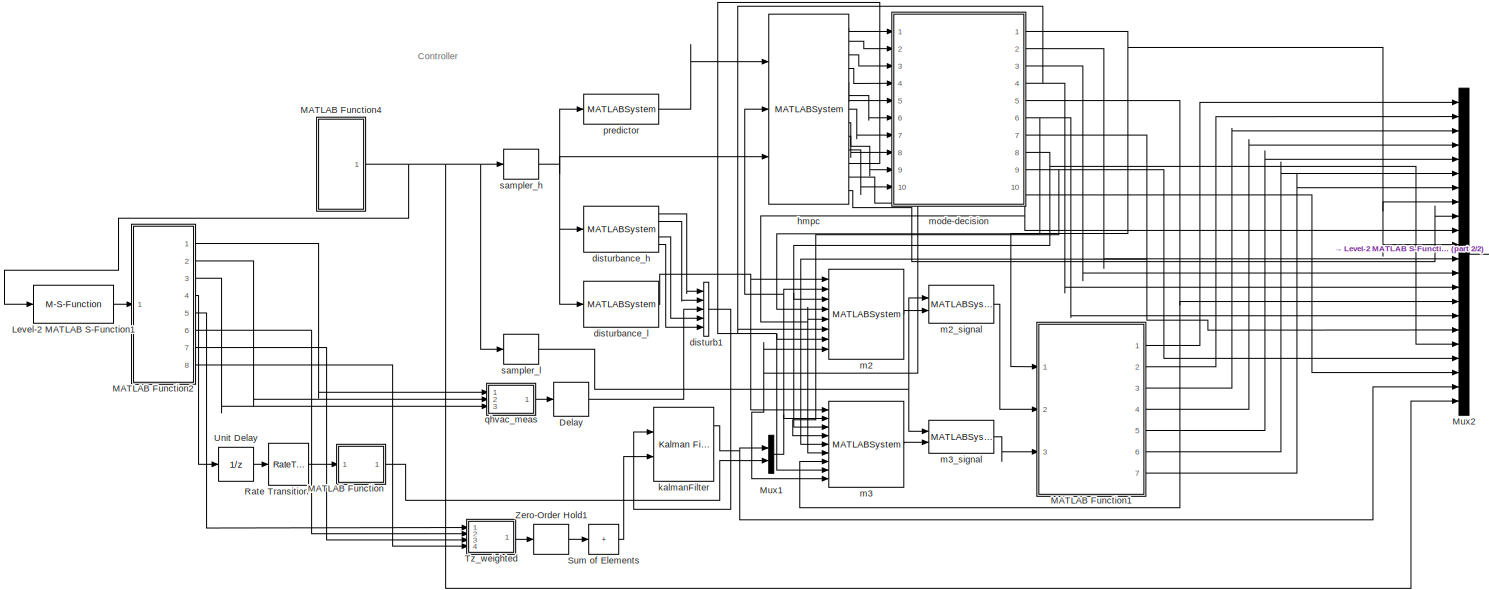
[diagram: root canvas - part 1/2, most of the canvas]
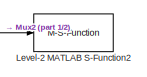
[diagram: root canvas - part 2/2, middle right region]
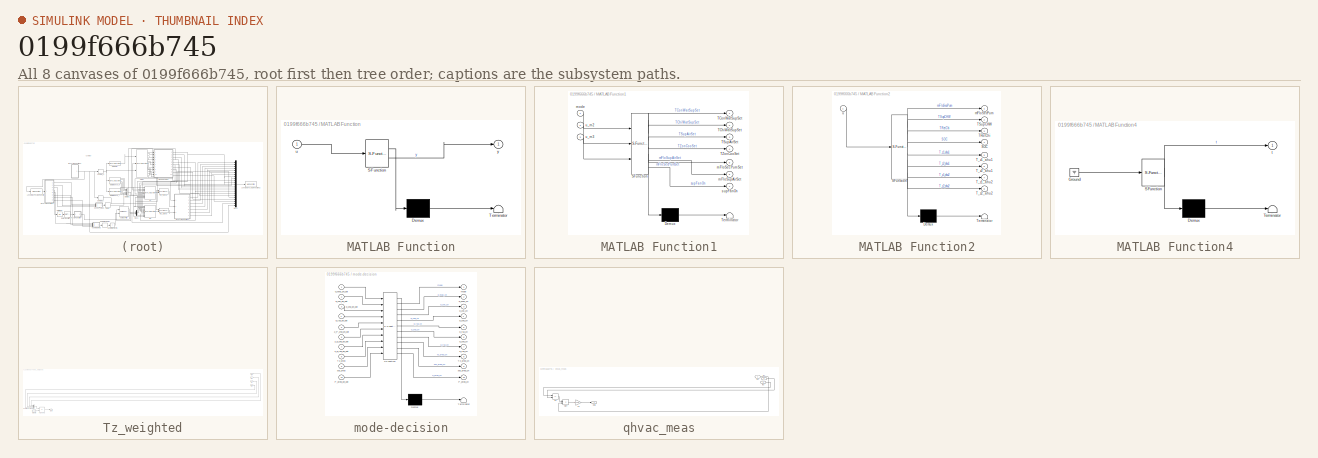
[diagram: thumbnail index - all 8 canvases of the model, root first then tree order]
MODEL slx_0199f666b745
KIND model
CONFIG AbsTol = auto
CONFIG EnableMultiTasking = off
CONFIG FixedStep = 60*15
CONFIG MaxStep = auto
CONFIG MinStep = auto
CONFIG RelTol = 1e-3
CONFIG SampleTimeConstraint = Unconstrained
CONFIG Solver = FixedStepAuto
CONFIG SolverName = FixedStepAuto
CONFIG StartTime = 20478600
CONFIG StopTime = 20479500+60*15
BLOCK [Delay] Delay
  DelayLength = 0
  InputPortMap = u0
  Ports = [1, 1]
  SampleTime = 3600
BLOCK [M-S-Function] Level-2 MATLAB S-Function1
  FunctionName = DBread_Meas_MPC
  Ports = [1, 1]
BLOCK [M-S-Function] Level-2 MATLAB S-Function2
  FunctionName = DBwrite_GEB
  Ports = [1, 1]
BLOCK [SubSystem] MATLAB Function
  ErrorFcn = Stateflow.Translate.translate
  PermitHierarchicalResolution = ExplicitOnly
  Ports = [1, 1]
  RequestExecContextInheritance = off
  SFBlockType = MATLAB Function
  TreatAsAtomicUnit = on
BLOCK [Demux] MATLAB Function/ Demux 
  Outputs = 1
  Ports = [1, 1]
BLOCK [S-Function] MATLAB Function/ SFunction 
  EnableBusSupport = on
  FunctionName = sf_sfun
  PortCounts = [1 2]
  Ports = [1, 2]
  SFcnIsStateOwnerBlock = off
  SFunctionDeploymentMode = off
  Tag = Stateflow S-Function 6
BLOCK [Terminator] MATLAB Function/ Terminator 
BLOCK [Inport] MATLAB Function/u
BLOCK [Outport] MATLAB Function/y
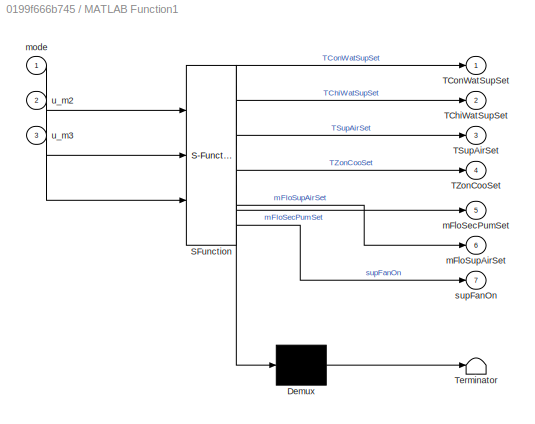
BLOCK [SubSystem] MATLAB Function1
  ErrorFcn = Stateflow.Translate.translate
  PermitHierarchicalResolution = ExplicitOnly
  Ports = [3, 7]
  RequestExecContextInheritance = off
  SFBlockType = MATLAB Function
  TreatAsAtomicUnit = on
BLOCK [Demux] MATLAB Function1/ Demux 
  Outputs = 1
  Ports = [1, 1]
BLOCK [S-Function] MATLAB Function1/ SFunction 
  EnableBusSupport = on
  FunctionName = sf_sfun
  PortCounts = [3 8]
  Ports = [3, 8]
  SFcnIsStateOwnerBlock = off
  SFunctionDeploymentMode = off
  Tag = Stateflow S-Function 1
BLOCK [Terminator] MATLAB Function1/ Terminator 
BLOCK [Outport] MATLAB Function1/TChiWatSupSet
  Port = 2
BLOCK [Outport] MATLAB Function1/TConWatSupSet
BLOCK [Outport] MATLAB Function1/TSupAirSet
  Port = 3
BLOCK [Outport] MATLAB Function1/TZonCooSet
  Port = 4
BLOCK [Outport] MATLAB Function1/mFloSecPumSet
  Port = 5
BLOCK [Outport] MATLAB Function1/mFloSupAirSet
  Port = 6
BLOCK [Inport] MATLAB Function1/mode
BLOCK [Outport] MATLAB Function1/supFanOn
  Port = 7
BLOCK [Inport] MATLAB Function1/u_m2
  Port = 2
BLOCK [Inport] MATLAB Function1/u_m3
  Port = 3
BLOCK [SubSystem] MATLAB Function2
  ErrorFcn = Stateflow.Translate.translate
  PermitHierarchicalResolution = ExplicitOnly
  Ports = [1, 8]
  RequestExecContextInheritance = off
  SFBlockType = MATLAB Function
  TreatAsAtomicUnit = on
BLOCK [Demux] MATLAB Function2/ Demux 
  Outputs = 1
  Ports = [1, 1]
BLOCK [S-Function] MATLAB Function2/ SFunction 
  EnableBusSupport = on
  FunctionName = sf_sfun
  PortCounts = [1 9]
  Ports = [1, 9]
  SFcnIsStateOwnerBlock = off
  SFunctionDeploymentMode = off
  Tag = Stateflow S-Function 3
BLOCK [Terminator] MATLAB Function2/ Terminator 
BLOCK [Outport] MATLAB Function2/SOC
  Port = 4
BLOCK [Outport] MATLAB Function2/TRetChi
  Port = 3
BLOCK [Outport] MATLAB Function2/TSupCHW
  Port = 2
BLOCK [Outport] MATLAB Function2/T_z1_ahu1
  Port = 5
BLOCK [Outport] MATLAB Function2/T_z1_ahu2
  Port = 7
BLOCK [Outport] MATLAB Function2/T_z2_ahu1
  Port = 6
BLOCK [Outport] MATLAB Function2/T_z2_ahu2
  Port = 8
BLOCK [Outport] MATLAB Function2/mFloSecPum
BLOCK [Inport] MATLAB Function2/u
BLOCK [SubSystem] MATLAB Function4
  ErrorFcn = Stateflow.Translate.translate
  PermitHierarchicalResolution = ExplicitOnly
  Ports = [0, 1]
  RequestExecContextInheritance = off
  SFBlockType = MATLAB Function
  TreatAsAtomicUnit = on
BLOCK [Demux] MATLAB Function4/ Demux 
  Outputs = 1
  Ports = [1, 1]
BLOCK [Ground] MATLAB Function4/ Ground 
BLOCK [S-Function] MATLAB Function4/ SFunction 
  EnableBusSupport = on
  FunctionName = sf_sfun
  PortCounts = [1 2]
  Ports = [1, 2]
  SFcnIsStateOwnerBlock = off
  SFunctionDeploymentMode = off
  Tag = Stateflow S-Function 5
BLOCK [Terminator] MATLAB Function4/ Terminator 
BLOCK [Outport] MATLAB Function4/t
BLOCK [Mux] Mux1
  DisplayOption = bar
  Inputs = 2
  Ports = [2, 1]
BLOCK [Mux] Mux2
  DisplayOption = bar
  Inputs = 22
  Ports = [22, 1]
BLOCK [RateTransition] Rate Transition
  InitialCondition = 0.7
  OutPortSampleTime = 3600
BLOCK [Sum] Sum of Elements
  IconShape = rectangular
  Inputs = +
  Ports = [1, 1]
BLOCK [SubSystem] Tz_weighted
  Ports = [4, 1]
  RequestExecContextInheritance = off
BLOCK [Inport] Tz_weighted/In1
BLOCK [Inport] Tz_weighted/In2
  Port = 2
BLOCK [Inport] Tz_weighted/In3
  Port = 3
BLOCK [Inport] Tz_weighted/In4
  Port = 4
BLOCK [Outport] Tz_weighted/Out1
BLOCK [Product] Tz_weighted/TZonAvg
  Ports = [2, 1]
BLOCK [Concatenate] Tz_weighted/Vector Concatenate
  NumInputs = 4
  Ports = [4, 1]
BLOCK [Constant] Tz_weighted/weights
  Value = [0.31, 0.18, 0.18,0.33]
BLOCK [UnitDelay] Unit Delay
  HasFrameUpgradeWarning = on
  InitialCondition = 0.7
  SampleTime = -1
BLOCK [ZeroOrderHold] Zero-Order Hold1
  SampleTime = 3600
BLOCK [Concatenate] disturb1
  NumInputs = 5
  Ports = [5, 1]
BLOCK [MATLABSystem] disturbance_h
  CH = 1
  MaskDisplay = disp('get_predictors_block_kalman');\nport_label('input',1,'time');\nport_label('output',1,'out1');\nport_label('output',2,'out2');\nport_label('output',3,'out3');\nport_label('output',4,'out4');\nport_label('output',5,'out5');
  MaskType = get_predictors_block_kalman
  PH = 1
  Ports = [1, 5]
  SimulateUsing = Interpreted execution
  System = get_predictors_block_kalman
  dt = 3600
  np = 5
BLOCK [MATLABSystem] disturbance_l
  CH = 1
  MaskDisplay = disp('get_predictors_block_15min');\nport_label('input',1,'time');\nport_label('output',1,'predictors');
  MaskType = get_predictors_block_15min
  PH = 4
  Ports = [1, 1]
  SimulateUsing = Interpreted execution
  System = get_predictors_block_15min
  dt = 900
  np = 5
BLOCK [MATLABSystem] hmpc
  CH = 1
  E_is_max = 333.550 * 2846.35
  MaskDisplay = disp('hmpc_casadi_block_minlp');\nport_label('input',1,'predictor');\nport_label('input',2,'states');\nport_label('input',3,'time');\nport_label('output',1,'q_hvac_ph_opt');\nport_label('output',2,'b_chc_ph_opt');\nport_label('output',3,'b_chd_ph_opt');\nport_label('output',4,'b_isd_ph_opt');\nport_label('output',5,'z_P_chd_ph_opt');\nport_label('output',6,'z_q_chd_ph_opt');\nport_label('output',7,'z_q_isd_...<+238ch>
  MaskType = hmpc_casadi_block_minlp
  PH = 24
  Ports = [3, 13]
  SimulateUsing = Interpreted execution
  System = hmpc_casadi_block_minlp
  cop_nom = 4.55
  cpa = 1.01
  dt = 3600
  m_oa_ahu1 = 0.295
  m_oa_ahu2 = 0.142
  nu = 13
  number_zone = 1
  occ_end = 20
  occ_start = 7
  price_tou = [0.0298, 0.0298, 0.0298, 0.0298, 0.0298, 0.0298, 0.0298, 0.0409, 0.0409, 0.0409, 0.113, 0.113, 0.113, 0.113, 0.113, 0.113, 0.0409, 0.0409, 0.0409, 0.0298, 0.0298, 0.0298, 0.0298, 0.0298]
  q_chc_nom = 18.970
  q_chd_nom = 26.4
  q_isd_max = 104.220
  q_isd_min = 0.01 * 104.220
  q_oa_max = 10
  soc_max = 1.0
  soc_min = 0.3
  w = [ 1, 1000, 0]
BLOCK [Reference] kalmanFilter  REF=ctrlSharedLib/Kalman Filter
  Ports = [2, 3]
  SourceBlock = ctrlSharedLib/Kalman Filter
  SourceProductBaseCode = CT,ID
  SourceType = ctrlKalmanFilter
BLOCK [MATLABSystem] m2
  Cpa = 1.081
  Cpw = 3.915
  M = 4
  MaskDisplay = disp('m2_chiller_discharging_opc');\nport_label('input',1,'predictor');\nport_label('input',2,'states');\nport_label('input',3,'Tz_h');\nport_label('input',4,'q_chd_h');\nport_label('input',5,'P_h');\nport_label('input',6,'on');\nport_label('input',7,'q_oa_h');\nport_label('input',8,'m_oa_h');\nport_label('output',1,'u_opt_resh');
  MaskType = m2_chiller_discharging_opc
  PLR_max = 1
  PLR_min = 0.3
  Ports = [8, 1]
  SimulateUsing = Interpreted execution
  System = m2_chiller_discharging_opc
  dt = 900
  mpchwp_max = 1.30
  nu = 9
  q_chd_max = 26.4
  q_small = 10
  u_lb = [ 29.44, 5, 12, 8, 0, 0.9477, 0.1 * 26.400, 0, 0 ]
  u_ub = [ 29.44, 10, 40, 12, 0.9748, 1.89, 1 *26.400, 0.1, 0.01 ]
  w = [ 1.0, 100.0 ]
BLOCK [MATLABSystem] m2_signal
  MaskDisplay = disp('transfer2signal');\nport_label('input',1,'time');\nport_label('input',2,'u');\nport_label('output',1,'ui');
  MaskType = transfer2signal
  Ports = [2, 1]
  SimulateUsing = Code generation
  System = transfer2signal
  dt_h = 3600
  dt_l = 900
  nu = 6
BLOCK [MATLABSystem] m3
  Cpa = 1.081
  Cpw = 3.915
  E_is_max = 333.550 * 2846.35
  M = 4
  MaskDisplay = disp('m3_tank_discharging_opc');\nport_label('input',1,'predictor');\nport_label('input',2,'states');\nport_label('input',3,'Tz_h');\nport_label('input',4,'SOC_h');\nport_label('input',5,'q_isd_h');\nport_label('input',6,'P_h');\nport_label('input',7,'on');\nport_label('input',8,'q_oa_h');\nport_label('input',9,'m_oa_h');\nport_label('output',1,'u_opt_resh');
  MaskType = m3_tank_discharging_opc
  PLR_max = 1.0
  PLR_min = 0.01
  Ports = [9, 1]
  SOC_max = 1.0
  SOC_min = 0.3
  SimulateUsing = Interpreted execution
  System = m3_tank_discharging_opc
  dt = 900
  mpchwp_max = 2.25
  nu = 9
  q_isd_max = 100.000
  q_small = 10
  u_lb = [ 5, 12, 6, 0.5849, 0.9477, 0.01 * 100.00, 0, 0, 0 ]
  u_ub = [ 10, 40, 12, 1.7547, 1.89, 1.1 * 100.00, 0.1, 0.01, 0.01 ]
  w = [ 10.0, 100.0, 1e6 ]
BLOCK [MATLABSystem] m3_signal
  MaskDisplay = disp('transfer2signal');\nport_label('input',1,'time');\nport_label('input',2,'u');\nport_label('output',1,'ui');
  MaskType = transfer2signal
  Ports = [2, 1]
  SimulateUsing = Code generation
  System = transfer2signal
  dt_h = 3600
  dt_l = 900
  nu = 5
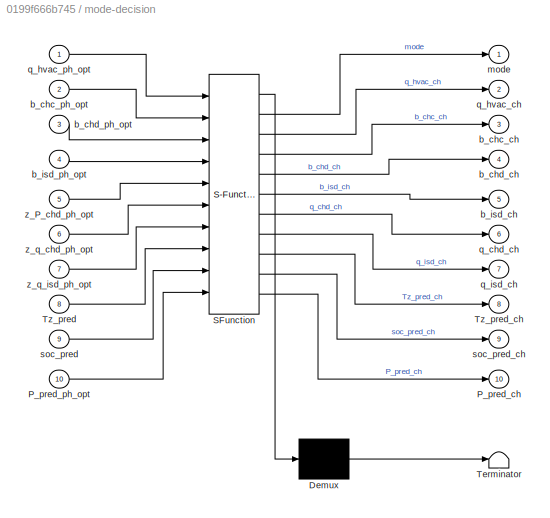
BLOCK [SubSystem] mode-decision
  ErrorFcn = Stateflow.Translate.translate
  PermitHierarchicalResolution = ExplicitOnly
  Ports = [10, 10]
  RequestExecContextInheritance = off
  SFBlockType = MATLAB Function
  TreatAsAtomicUnit = on
BLOCK [Demux] mode-decision/ Demux 
  Outputs = 1
  Ports = [1, 1]
BLOCK [S-Function] mode-decision/ SFunction 
  EnableBusSupport = on
  FunctionName = sf_sfun
  PortCounts = [10 11]
  Ports = [10, 11]
  SFcnIsStateOwnerBlock = off
  SFunctionDeploymentMode = off
  Tag = Stateflow S-Function 4
BLOCK [Terminator] mode-decision/ Terminator 
BLOCK [Outport] mode-decision/P_pred_ch
  Port = 10
BLOCK [Inport] mode-decision/P_pred_ph_opt
  Port = 10
BLOCK [Inport] mode-decision/Tz_pred
  Port = 8
BLOCK [Outport] mode-decision/Tz_pred_ch
  Port = 8
BLOCK [Outport] mode-decision/b_chc_ch
  Port = 3
BLOCK [Inport] mode-decision/b_chc_ph_opt
  Port = 2
BLOCK [Outport] mode-decision/b_chd_ch
  Port = 4
BLOCK [Inport] mode-decision/b_chd_ph_opt
  Port = 3
BLOCK [Outport] mode-decision/b_isd_ch
  Port = 5
BLOCK [Inport] mode-decision/b_isd_ph_opt
  Port = 4
BLOCK [Outport] mode-decision/mode
BLOCK [Outport] mode-decision/q_chd_ch
  Port = 6
BLOCK [Outport] mode-decision/q_hvac_ch
  Port = 2
BLOCK [Inport] mode-decision/q_hvac_ph_opt
BLOCK [Outport] mode-decision/q_isd_ch
  Port = 7
BLOCK [Inport] mode-decision/soc_pred
  Port = 9
BLOCK [Outport] mode-decision/soc_pred_ch
  Port = 9
BLOCK [Inport] mode-decision/z_P_chd_ph_opt
  Port = 5
BLOCK [Inport] mode-decision/z_q_chd_ph_opt
  Port = 6
BLOCK [Inport] mode-decision/z_q_isd_ph_opt
  Port = 7
BLOCK [MATLABSystem] predictor
  CH = 1
  MaskDisplay = disp('get_predictors_block');\nport_label('input',1,'time');\nport_label('output',1,'predictors');
  MaskType = get_predictors_block
  PH = 24
  Ports = [1, 1]
  SimulateUsing = Interpreted execution
  System = get_predictors_block
  dt = 3600
  np = 5
BLOCK [SubSystem] qhvac_meas
  Ports = [3, 1]
  RequestExecContextInheritance = off
BLOCK [Inport] qhvac_meas/In1
BLOCK [Inport] qhvac_meas/In2
  Port = 2
BLOCK [Inport] qhvac_meas/In3
  Port = 3
BLOCK [Outport] qhvac_meas/Out1
BLOCK [Gain] qhvac_meas/cp
  Gain = -3915/1000
BLOCK [Sum] qhvac_meas/dT
  IconShape = rectangular
  Inputs = +-
  Ports = [2, 1]
BLOCK [Product] qhvac_meas/mdT
  Ports = [2, 1]
BLOCK [ZeroOrderHold] sampler_h
  SampleTime = 3600
BLOCK [ZeroOrderHold] sampler_l
  SampleTime = 900
ANNOTATION (root): Controller
LINE Delay:1 -> disturb1:3
LINE Level-2 MATLAB S-Function1:1 -> MATLAB Function2:1
LINE MATLAB Function1:1 -> Mux2:1
LINE MATLAB Function1:2 -> Mux2:2
LINE MATLAB Function1:3 -> Mux2:3
LINE MATLAB Function1:4 -> Mux2:4
LINE MATLAB Function1:5 -> Mux2:5
LINE MATLAB Function1:6 -> Mux2:6
LINE MATLAB Function1:7 -> Mux2:7
LINE MATLAB Function2:1 -> qhvac_meas:1
LINE MATLAB Function2:2 -> qhvac_meas:2
LINE MATLAB Function2:3 -> qhvac_meas:3
LINE MATLAB Function2:4 -> Unit Delay:1
LINE MATLAB Function2:5 -> Tz_weighted:1
LINE MATLAB Function2:6 -> Tz_weighted:2
LINE MATLAB Function2:7 -> Tz_weighted:3
LINE MATLAB Function2:8 -> Tz_weighted:4
NET MATLAB Function4:1 -> Level-2 MATLAB S-Function1:1, Mux2:22, sampler_h:1, sampler_l:1
LINE MATLAB Function:1 -> Mux1:2
NET Mux1:1 -> hmpc:2, m2:2, m3:2
LINE Mux2:1 -> Level-2 MATLAB S-Function2:1
LINE Rate Transition:1 -> MATLAB Function:1
LINE Sum of Elements:1 -> kalmanFilter:2
LINE Tz_weighted/In1:1 -> Tz_weighted/Vector Concatenate:1
LINE Tz_weighted/In2:1 -> Tz_weighted/Vector Concatenate:2
LINE Tz_weighted/In3:1 -> Tz_weighted/Vector Concatenate:3
LINE Tz_weighted/In4:1 -> Tz_weighted/Vector Concatenate:4
LINE Tz_weighted/TZonAvg:1 -> Tz_weighted/Out1:1
LINE Tz_weighted/Vector Concatenate:1 -> Tz_weighted/TZonAvg:1
LINE Tz_weighted/weights:1 -> Tz_weighted/TZonAvg:2
LINE Tz_weighted:1 -> Zero-Order Hold1:1
LINE Unit Delay:1 -> Rate Transition:1
LINE Zero-Order Hold1:1 -> Sum of Elements:1
LINE disturb1:1 -> kalmanFilter:1
LINE disturbance_h:1 -> disturb1:1
LINE disturbance_h:2 -> disturb1:2
LINE disturbance_h:4 -> disturb1:4
LINE disturbance_h:5 -> disturb1:5
NET disturbance_l:1 -> m2:1, m3:1
LINE hmpc:1 -> mode-decision:1
LINE hmpc:10 -> mode-decision:10
NET hmpc:11 -> m2:7, m3:8
NET hmpc:12 -> m2:8, m3:9
LINE hmpc:13 -> Mux2:9
LINE hmpc:2 -> mode-decision:2
LINE hmpc:3 -> mode-decision:3
LINE hmpc:4 -> mode-decision:4
LINE hmpc:5 -> mode-decision:5
LINE hmpc:6 -> mode-decision:6
LINE hmpc:7 -> mode-decision:7
LINE hmpc:8 -> mode-decision:8
LINE hmpc:9 -> mode-decision:9
NET kalmanFilter:1 -> Mux1:1, Mux2:21
LINE m2:1 -> m2_signal:2
LINE m2_signal:1 -> MATLAB Function1:2
LINE m3:1 -> m3_signal:2
LINE m3_signal:1 -> MATLAB Function1:3
NET mode-decision:1 -> MATLAB Function1:1, Mux2:11, Mux2:8
NET mode-decision:10 -> Mux2:10, Mux2:20, m2:5, m3:6
LINE mode-decision:2 -> Mux2:12
LINE mode-decision:3 -> Mux2:13
NET mode-decision:4 -> Mux2:14, m2:6
NET mode-decision:5 -> Mux2:15, m3:7
NET mode-decision:6 -> Mux2:16, m2:4
NET mode-decision:7 -> Mux2:17, m3:5
NET mode-decision:8 -> Mux2:18, m2:3, m3:3
NET mode-decision:9 -> Mux2:19, m3:4
LINE predictor:1 -> hmpc:1
LINE qhvac_meas/In1:1 -> qhvac_meas/mdT:2
LINE qhvac_meas/In2:1 -> qhvac_meas/dT:2
LINE qhvac_meas/In3:1 -> qhvac_meas/dT:1
LINE qhvac_meas/cp:1 -> qhvac_meas/Out1:1
LINE qhvac_meas/dT:1 -> qhvac_meas/mdT:1
LINE qhvac_meas/mdT:1 -> qhvac_meas/cp:1
LINE qhvac_meas:1 -> Delay:1
NET sampler_h:1 -> disturbance_h:1, disturbance_l:1, hmpc:3, predictor:1
NET sampler_l:1 -> m2_signal:1, m3_signal:1
note: NET lines group one-source signal fan-out (src -> all destinations, sorted); 1:1 wires keep LINE
CHART MATLAB Function1 states=1 transitions=1
  STATE_LABEL 'eML_blk_kernel()'
  STATE_LABEL 'SCRIPT:\nfunction [TConWatSupSet, TChiWatSupSet, TSupAirSet, TZonCooSet, mFloSecPumSet, mFloSupAirSet,supFanOn] = SignalToTestbed(mode, u_m2, u_m3)\n% INPUTS:\n%   mode: operation mode: 1: off, 2: discharge tank and chiller, 3: discharge tank, 4: discharge chiller, 5: charge tank\n%   u_m2: nu2-by-1: control signal for m2: [Tcw_opt;Tchw_opt;Tsa_opt;Tz_pred; mschwp_opt; msa_opt];\n%   u_m3: nu3-by-1: co...<+819ch>'
CHART MATLAB Function2 states=1 transitions=1
  STATE_LABEL 'eML_blk_kernel()'
  STATE_LABEL "SCRIPT:\nfunction [mFloSecPum, TSupCHW, TRetChi, SOC, T_z1_ahu1, T_z2_ahu1, T_z1_ahu2, T_z2_ahu2] = fcn(u)\n\ncoder.extrinsic('xlsread');\nTES=0;\n[TES] = xlsread('settings.csv', 1,'G2');\n\nmFloSecPum = zeros(1);\nTSupCHW = zeros(1);\nTRetChi = zeros(1);\nSOC = zeros(1);\nT_z1_ahu1 = zeros(1);\nT_z2_ahu1 = zeros(1);\nT_z1_ahu2 = zeros(1);\nT_z2_ahu2 = zeros(1);\n\nmFloSecPum=u(1);\nTSupCHW=u(2);\nTRetChi=u(3);\nSOC...<+185ch>"
CHART mode-decision states=1 transitions=1
  STATE_LABEL 'eML_blk_kernel()'
  STATE_LABEL 'SCRIPT:\nfunction [mode, q_hvac_ch, b_chc_ch, b_chd_ch, b_isd_ch, q_chd_ch, q_isd_ch, Tz_pred_ch, soc_pred_ch, P_pred_ch] = fcn(q_hvac_ph_opt, b_chc_ph_opt,...\n                  b_chd_ph_opt, b_isd_ph_opt, z_P_chd_ph_opt, ...\n                  z_q_chd_ph_opt, z_q_isd_ph_opt, Tz_pred, ...\n                  soc_pred, P_pred_ph_opt)\n% calculate output\nq_hvac_ch = q_hvac_ph_opt(1);\nb_chc_ch = b_chc_ph_...<+505ch>'
CHART MATLAB Function4 states=1 transitions=1
  STATE_LABEL 'eML_blk_kernel()'
  STATE_LABEL "SCRIPT:\nfunction t  = fcn\ncoder.extrinsic('xlsread');\nT=0;\n[T] = xlsread('Time.xlsx', 1,'B1');\nt=0;\nt=T+60*15;\n\n"
CHART MATLAB Function states=1 transitions=1
  STATE_LABEL 'eML_blk_kernel()'
  STATE_LABEL 'SCRIPT:\nfunction y = fcn(u)\n\ny = u;\n'
CHART  states=0 transitions=0
CHART  states=0 transitions=0
CHART  states=0 transitions=0
CHART  states=0 transitions=0
CHART  states=0 transitions=0
